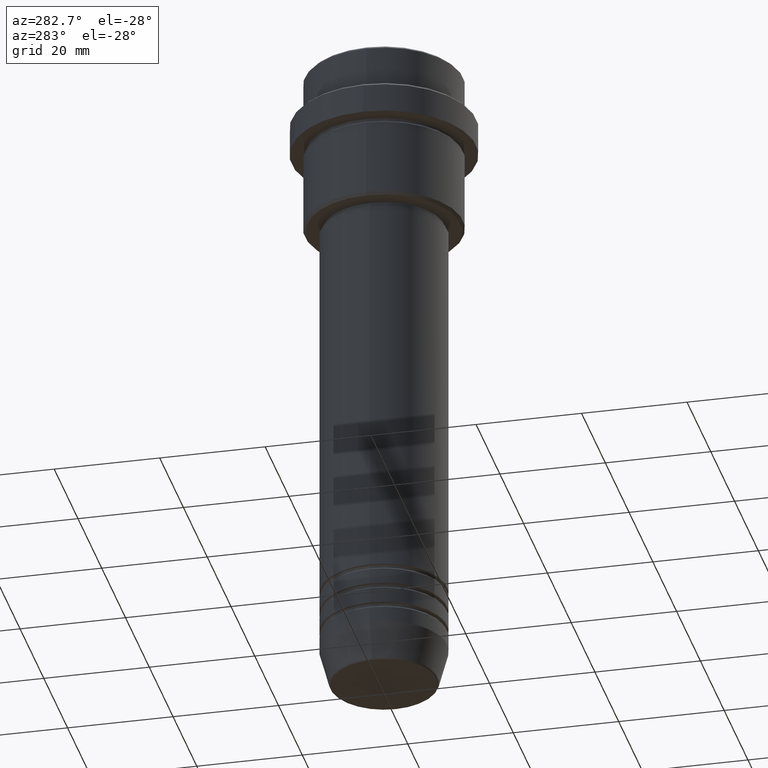
[diagram: clean part render]
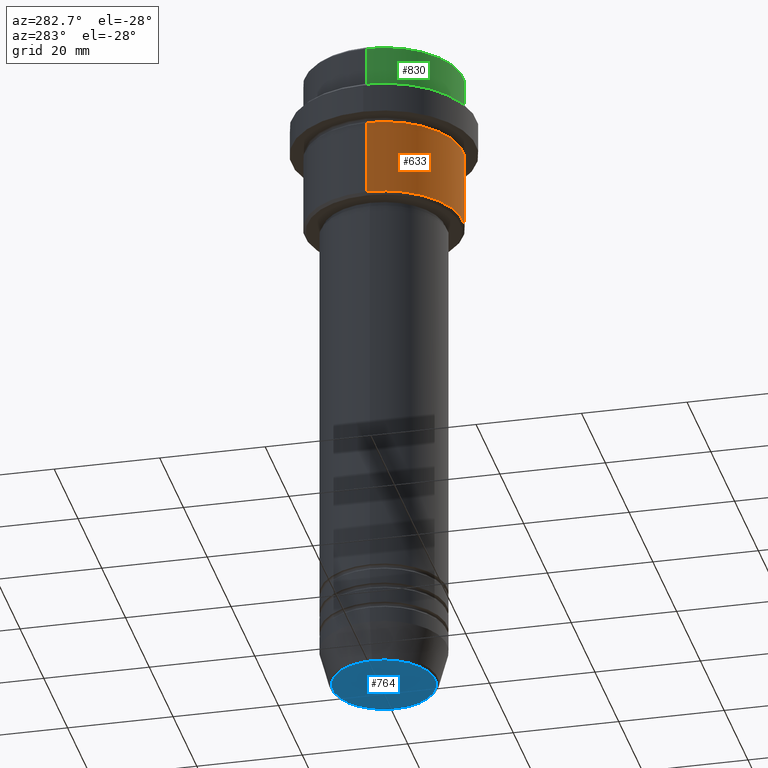
[diagram: same view with three faces highlighted in distinct colors, each labeled with its STEP entity id]
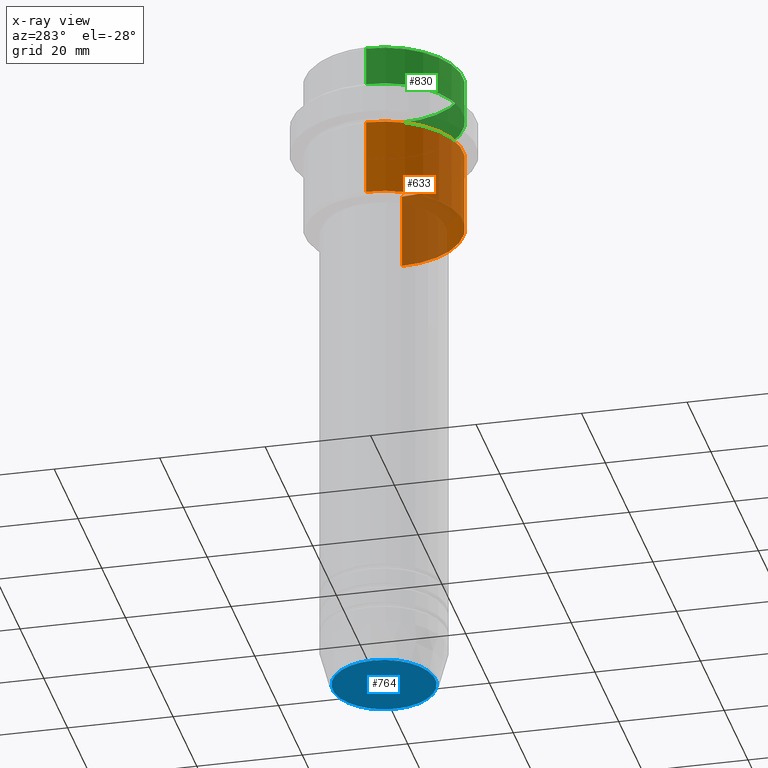
[diagram: x-ray of the same camera — body ghosted, the three highlighted faces saturated]
A machine part, auxiliary view with three faces highlighted in distinct colors.
The next image is the same camera in x-ray (body ghosted, the three faces saturated) — at least one of them is partly hidden behind the body in this view.
Their STEP definitions:

[orange] entity #633 — the highlighted cylindrical surface (partial cylindrical patch) has radius 15 mm, axis along (-0, -0, 1).
#9 = CARTESIAN_POINT ( 'NONE',  ( 0.000000000000000000, 0.000000000000000000, -16.00000000000000000 ) ) ;
#49 = LINE ( 'NONE', #461, #467 ) ;
#50 = ORIENTED_EDGE ( 'NONE', *, *, #154, .F. ) ;
#59 = CIRCLE ( 'NONE', #490, 15.00000000000000178 ) ;
#83 = CARTESIAN_POINT ( 'NONE',  ( 15.00000000000000000, 0.000000000000000000, -30.49999999999998579 ) ) ;
#109 = CARTESIAN_POINT ( 'NONE',  ( -15.00000000000000000, 1.836970198721029589E-15, -30.49999999999998579 ) ) ;
#124 = CYLINDRICAL_SURFACE ( 'NONE', #1155, 15.00000000000000000 ) ;
#129 = LINE ( 'NONE', #1096, #1310 ) ;
#154 = EDGE_CURVE ( 'NONE', #715, #1369, #59, .T. ) ;
#286 = EDGE_CURVE ( 'NONE', #448, #715, #129, .T. ) ;
#320 = ORIENTED_EDGE ( 'NONE', *, *, #286, .F. ) ;
#350 = DIRECTION ( 'NONE',  ( -0.000000000000000000, -0.000000000000000000, 1.000000000000000000 ) ) ;
#391 = EDGE_CURVE ( 'NONE', #1264, #1369, #49, .T. ) ;
#393 = CARTESIAN_POINT ( 'NONE',  ( -15.00000000000000355, 1.836970198721029983E-15, -16.00000000000000000 ) ) ;
#448 = VERTEX_POINT ( 'NONE', #109 ) ;
#461 = CARTESIAN_POINT ( 'NONE',  ( 15.00000000000000000, 0.000000000000000000, 0.000000000000000000 ) ) ;
#467 = VECTOR ( 'NONE', #926, 1000.000000000000000 ) ;
#490 = AXIS2_PLACEMENT_3D ( 'NONE', #9, #1002, #1217 ) ;
#566 = DIRECTION ( 'NONE',  ( 1.000000000000000000, 0.000000000000000000, 0.000000000000000000 ) ) ;
#626 = DIRECTION ( 'NONE',  ( -0.000000000000000000, -0.000000000000000000, 1.000000000000000000 ) ) ;
#633 = ADVANCED_FACE ( 'NONE', ( #1339 ), #124, .T. ) ;
#645 = EDGE_LOOP ( 'NONE', ( #320, #1373, #1376, #50 ) ) ;
#682 = CIRCLE ( 'NONE', #1359, 15.00000000000000000 ) ;
#715 = VERTEX_POINT ( 'NONE', #393 ) ;
#770 = EDGE_CURVE ( 'NONE', #448, #1264, #682, .T. ) ;
#883 = DIRECTION ( 'NONE',  ( -0.000000000000000000, -0.000000000000000000, 1.000000000000000000 ) ) ;
#926 = DIRECTION ( 'NONE',  ( -0.000000000000000000, -0.000000000000000000, 1.000000000000000000 ) ) ;
#1002 = DIRECTION ( 'NONE',  ( -0.000000000000000000, -0.000000000000000000, 1.000000000000000000 ) ) ;
#1096 = CARTESIAN_POINT ( 'NONE',  ( -15.00000000000000000, 1.836970198721029589E-15, 0.000000000000000000 ) ) ;
#1126 = CARTESIAN_POINT ( 'NONE',  ( 0.000000000000000000, 0.000000000000000000, 0.000000000000000000 ) ) ;
#1155 = AXIS2_PLACEMENT_3D ( 'NONE', #1126, #350, #566 ) ;
#1214 = CARTESIAN_POINT ( 'NONE',  ( 15.00000000000000178, 0.000000000000000000, -16.00000000000000000 ) ) ;
#1217 = DIRECTION ( 'NONE',  ( 1.000000000000000000, 0.000000000000000000, 0.000000000000000000 ) ) ;
#1264 = VERTEX_POINT ( 'NONE', #83 ) ;
#1310 = VECTOR ( 'NONE', #883, 1000.000000000000000 ) ;
#1339 = FACE_OUTER_BOUND ( 'NONE', #645, .T. ) ;
#1359 = AXIS2_PLACEMENT_3D ( 'NONE', #1414, #626, #1400 ) ;
#1369 = VERTEX_POINT ( 'NONE', #1214 ) ;
#1373 = ORIENTED_EDGE ( 'NONE', *, *, #770, .T. ) ;
#1376 = ORIENTED_EDGE ( 'NONE', *, *, #391, .T. ) ;
#1400 = DIRECTION ( 'NONE',  ( -1.000000000000000000, 0.000000000000000000, 0.000000000000000000 ) ) ;
#1414 = CARTESIAN_POINT ( 'NONE',  ( 0.000000000000000000, 0.000000000000000000, -30.49999999999998579 ) ) ;

[blue] entity #764 — the highlighted planar face has unit normal (0, -0, 1).
#100 = FACE_OUTER_BOUND ( 'NONE', #831, .T. ) ;
#123 = CARTESIAN_POINT ( 'NONE',  ( 0.000000000000000000, 0.000000000000000000, -126.0000000000000000 ) ) ;
#144 = DIRECTION ( 'NONE',  ( 0.000000000000000000, 0.000000000000000000, -1.000000000000000000 ) ) ;
#267 = CIRCLE ( 'NONE', #1089, 9.740692158992654726 ) ;
#305 = EDGE_CURVE ( 'NONE', #1166, #1091, #267, .T. ) ;
#401 = AXIS2_PLACEMENT_3D ( 'NONE', #856, #1266, #1172 ) ;
#405 = CIRCLE ( 'NONE', #1340, 9.740692158992654726 ) ;
#507 = DIRECTION ( 'NONE',  ( 1.000000000000000000, 0.000000000000000000, 0.000000000000000000 ) ) ;
#616 = ORIENTED_EDGE ( 'NONE', *, *, #305, .T. ) ;
#648 = PLANE ( 'NONE',  #401 ) ;
#764 = ADVANCED_FACE ( 'NONE', ( #100 ), #648, .F. ) ;
#831 = EDGE_LOOP ( 'NONE', ( #616, #947 ) ) ;
#856 = CARTESIAN_POINT ( 'NONE',  ( 0.000000000000000000, 0.000000000000000000, -126.0000000000000000 ) ) ;
#947 = ORIENTED_EDGE ( 'NONE', *, *, #1405, .T. ) ;
#969 = CARTESIAN_POINT ( 'NONE',  ( 0.000000000000000000, 0.000000000000000000, -126.0000000000000000 ) ) ;
#1010 = CARTESIAN_POINT ( 'NONE',  ( 9.740692158992654726, 0.000000000000000000, -126.0000000000000000 ) ) ;
#1089 = AXIS2_PLACEMENT_3D ( 'NONE', #123, #144, #1330 ) ;
#1091 = VERTEX_POINT ( 'NONE', #1304 ) ;
#1166 = VERTEX_POINT ( 'NONE', #1010 ) ;
#1172 = DIRECTION ( 'NONE',  ( 1.000000000000000000, 0.000000000000000000, 0.000000000000000000 ) ) ;
#1266 = DIRECTION ( 'NONE',  ( 0.000000000000000000, -0.000000000000000000, 1.000000000000000000 ) ) ;
#1304 = CARTESIAN_POINT ( 'NONE',  ( -9.740692158992654726, 1.222463696683474604E-15, -126.0000000000000000 ) ) ;
#1330 = DIRECTION ( 'NONE',  ( 1.000000000000000000, 0.000000000000000000, 0.000000000000000000 ) ) ;
#1340 = AXIS2_PLACEMENT_3D ( 'NONE', #969, #1413, #507 ) ;
#1405 = EDGE_CURVE ( 'NONE', #1091, #1166, #405, .T. ) ;
#1413 = DIRECTION ( 'NONE',  ( 0.000000000000000000, 0.000000000000000000, -1.000000000000000000 ) ) ;

[green] entity #830 — the highlighted cylindrical surface (partial cylindrical patch) has radius 15 mm, axis along (-0, -0, 1).
#48 = EDGE_CURVE ( 'NONE', #508, #1259, #863, .T. ) ;
#192 = VERTEX_POINT ( 'NONE', #1395 ) ;
#211 = DIRECTION ( 'NONE',  ( 1.000000000000000000, 0.000000000000000000, 0.000000000000000000 ) ) ;
#230 = DIRECTION ( 'NONE',  ( -0.000000000000000000, -0.000000000000000000, 1.000000000000000000 ) ) ;
#354 = VECTOR ( 'NONE', #1087, 1000.000000000000000 ) ;
#416 = CYLINDRICAL_SURFACE ( 'NONE', #423, 15.00000000000000000 ) ;
#423 = AXIS2_PLACEMENT_3D ( 'NONE', #1161, #529, #211 ) ;
#426 = CARTESIAN_POINT ( 'NONE',  ( 15.00000000000000000, 0.000000000000000000, 0.000000000000000000 ) ) ;
#440 = EDGE_CURVE ( 'NONE', #1259, #1144, #1396, .T. ) ;
#508 = VERTEX_POINT ( 'NONE', #592 ) ;
#513 = CARTESIAN_POINT ( 'NONE',  ( 15.00000000000000000, 0.000000000000000000, -0.4999999999999970024 ) ) ;
#518 = AXIS2_PLACEMENT_3D ( 'NONE', #754, #539, #740 ) ;
#529 = DIRECTION ( 'NONE',  ( -0.000000000000000000, -0.000000000000000000, 1.000000000000000000 ) ) ;
#539 = DIRECTION ( 'NONE',  ( -0.000000000000000000, -0.000000000000000000, 1.000000000000000000 ) ) ;
#546 = VECTOR ( 'NONE', #230, 1000.000000000000000 ) ;
#592 = CARTESIAN_POINT ( 'NONE',  ( -15.00000000000000000, 1.836970198721029589E-15, -7.999999999999998224 ) ) ;
#716 = DIRECTION ( 'NONE',  ( 0.000000000000000000, 0.000000000000000000, -1.000000000000000000 ) ) ;
#740 = DIRECTION ( 'NONE',  ( 1.000000000000000000, 0.000000000000000000, 0.000000000000000000 ) ) ;
#754 = CARTESIAN_POINT ( 'NONE',  ( 0.000000000000000000, 0.000000000000000000, -7.999999999999998224 ) ) ;
#808 = LINE ( 'NONE', #1207, #546 ) ;
#830 = ADVANCED_FACE ( 'NONE', ( #1185 ), #416, .T. ) ;
#846 = ORIENTED_EDGE ( 'NONE', *, *, #440, .T. ) ;
#863 = CIRCLE ( 'NONE', #518, 15.00000000000000000 ) ;
#878 = ORIENTED_EDGE ( 'NONE', *, *, #1346, .T. ) ;
#898 = AXIS2_PLACEMENT_3D ( 'NONE', #1073, #716, #945 ) ;
#930 = ORIENTED_EDGE ( 'NONE', *, *, #48, .T. ) ;
#945 = DIRECTION ( 'NONE',  ( 1.000000000000000000, 0.000000000000000000, 0.000000000000000000 ) ) ;
#1073 = CARTESIAN_POINT ( 'NONE',  ( 0.000000000000000000, 0.000000000000000000, -0.4999999999999970024 ) ) ;
#1087 = DIRECTION ( 'NONE',  ( -0.000000000000000000, -0.000000000000000000, 1.000000000000000000 ) ) ;
#1119 = CIRCLE ( 'NONE', #898, 15.00000000000000000 ) ;
#1122 = ORIENTED_EDGE ( 'NONE', *, *, #1306, .F. ) ;
#1144 = VERTEX_POINT ( 'NONE', #513 ) ;
#1161 = CARTESIAN_POINT ( 'NONE',  ( 0.000000000000000000, 0.000000000000000000, 0.000000000000000000 ) ) ;
#1170 = CARTESIAN_POINT ( 'NONE',  ( 15.00000000000000000, 0.000000000000000000, -7.999999999999998224 ) ) ;
#1185 = FACE_OUTER_BOUND ( 'NONE', #1188, .T. ) ;
#1188 = EDGE_LOOP ( 'NONE', ( #1122, #930, #846, #878 ) ) ;
#1207 = CARTESIAN_POINT ( 'NONE',  ( -15.00000000000000000, 1.836970198721029589E-15, 0.000000000000000000 ) ) ;
#1259 = VERTEX_POINT ( 'NONE', #1170 ) ;
#1306 = EDGE_CURVE ( 'NONE', #508, #192, #808, .T. ) ;
#1346 = EDGE_CURVE ( 'NONE', #1144, #192, #1119, .T. ) ;
#1395 = CARTESIAN_POINT ( 'NONE',  ( -15.00000000000000000, 1.836970198721029589E-15, -0.4999999999999970024 ) ) ;
#1396 = LINE ( 'NONE', #426, #354 ) ;